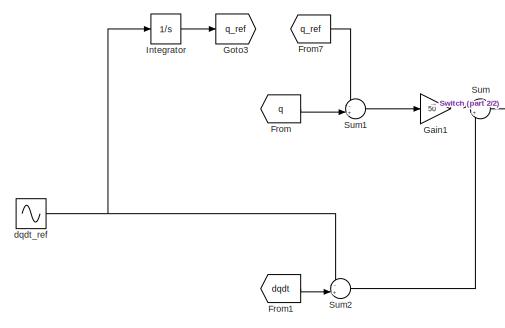
[diagram: root canvas - part 1/2, top left region]
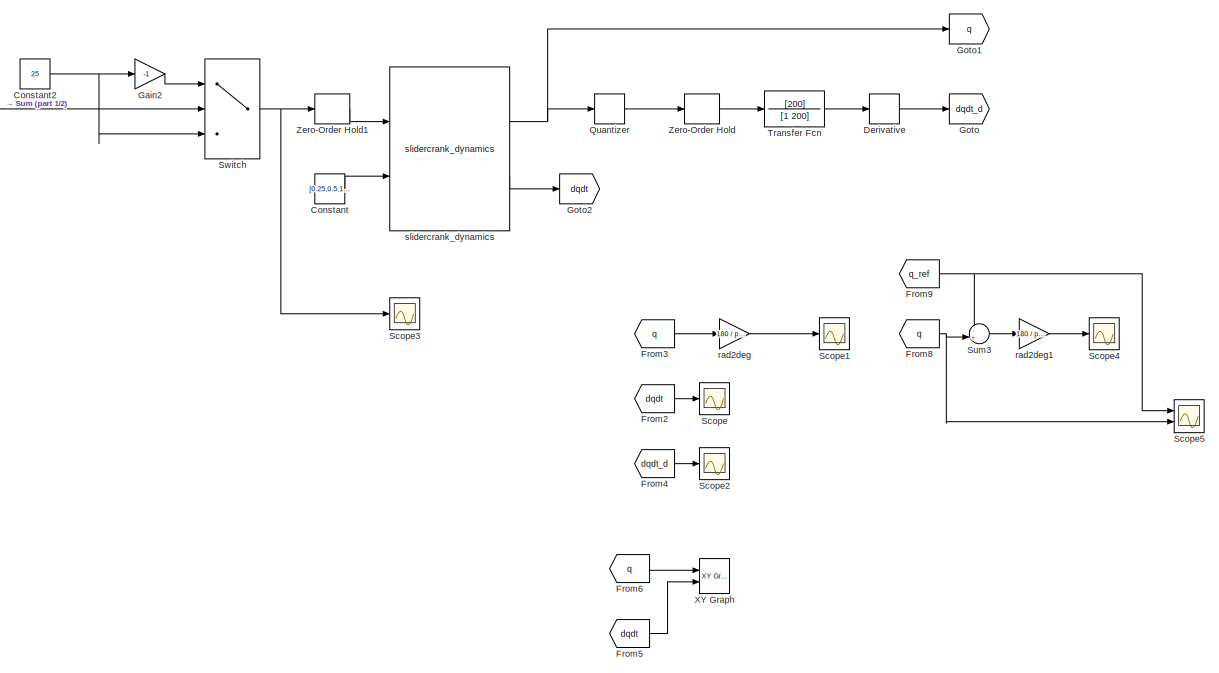
[diagram: root canvas - part 2/2, center side, full height]
MODEL slx_597946331d45
KIND model
CONFIG AbsTol = auto
CONFIG EnableMultiTasking = off
CONFIG FixedStep = auto
CONFIG MaxStep = 1e-5
CONFIG MinStep = auto
CONFIG RelTol = 1e-3
CONFIG SampleTimeConstraint = Unconstrained
CONFIG Solver = VariableStepAuto
CONFIG SolverName = VariableStepAuto
CONFIG StartTime = 0.0
CONFIG StopTime = 1
BLOCK [Constant] Constant
  Value = [0.25,0.5,1,2,0.5]
BLOCK [Constant] Constant2
  Value = 25
BLOCK [Derivative] Derivative
  CoefficientInTFapproximation = 1000
BLOCK [From] From
  GotoTag = q
BLOCK [From] From1
  GotoTag = dqdt
BLOCK [From] From2
  GotoTag = dqdt
BLOCK [From] From3
  GotoTag = q
BLOCK [From] From4
  GotoTag = dqdt_d
BLOCK [From] From5
  Commented = on
  GotoTag = dqdt
BLOCK [From] From6
  Commented = on
  GotoTag = q
BLOCK [From] From7
  GotoTag = q_ref
BLOCK [From] From8
  GotoTag = q
BLOCK [From] From9
  GotoTag = q_ref
BLOCK [Gain] Gain1
  Gain = 50
  OutDataTypeStr = Inherit: Inherit via internal rule
  ParamDataTypeStr = Inherit: Inherit via internal rule
  SaturateOnIntegerOverflow = off
BLOCK [Gain] Gain2
  Gain = -1
  OutDataTypeStr = Inherit: Inherit via internal rule
  ParamDataTypeStr = Inherit: Inherit via internal rule
  SaturateOnIntegerOverflow = off
BLOCK [Goto] Goto
  GotoTag = dqdt_d
BLOCK [Goto] Goto1
  GotoTag = q
BLOCK [Goto] Goto2
  GotoTag = dqdt
BLOCK [Goto] Goto3
  GotoTag = q_ref
BLOCK [Integrator] Integrator
  Ports = [1, 1]
BLOCK [Quantizer] Quantizer
  Commented = through
  QuantizationInterval = 2*pi()/4096
BLOCK [Scope] Scope
  NumInputPorts = 1
  Ports = [1]
  ScopeSpecificationString = Simulink.scopes.TimeScopeBlockCfg('CurrentConfiguration', extmgr.ConfigurationSet(extmgr.Configuration('Core','General UI',true),extmgr.Configuration('Core','Source UI',true),extmgr.Configuration('Sources','WiredSimulink',true),extmgr.Configuration('Visuals','Time Domain',true,'SerializedDisplays',{struct('MinYLimReal','-2.39519','MaxYLimReal','2.24479','YLabelReal','','MinYLimMag','0.00000','MaxY...<+1390ch>
BLOCK [Scope] Scope1
  NumInputPorts = 1
  Ports = [1]
  ScopeSpecificationString = Simulink.scopes.TimeScopeBlockCfg('CurrentConfiguration', extmgr.ConfigurationSet(extmgr.Configuration('Core','General UI',true),extmgr.Configuration('Core','Source UI',true),extmgr.Configuration('Sources','WiredSimulink',true,'DataLoggingVariableName','ScopeData1'),extmgr.Configuration('Visuals','Time Domain',true,'SerializedDisplays',{struct('MinYLimReal','-79.62817','MaxYLimReal','60.81192','YL...<+1420ch>
BLOCK [Scope] Scope2
  NumInputPorts = 1
  Ports = [1]
  ScopeSpecificationString = Simulink.scopes.TimeScopeBlockCfg('CurrentConfiguration', extmgr.ConfigurationSet(extmgr.Configuration('Core','General UI',true),extmgr.Configuration('Core','Source UI',true),extmgr.Configuration('Sources','WiredSimulink',true,'DataLoggingVariableName','ScopeData2'),extmgr.Configuration('Visuals','Time Domain',true,'SerializedDisplays',{struct('MinYLimReal','-238.14198','MaxYLimReal','49.23097','Y...<+1410ch>
BLOCK [Scope] Scope3
  NumInputPorts = 1
  Ports = [1]
  ScopeSpecificationString = Simulink.scopes.TimeScopeBlockCfg('CurrentConfiguration', extmgr.ConfigurationSet(extmgr.Configuration('Core','General UI',true),extmgr.Configuration('Core','Source UI',true),extmgr.Configuration('Sources','WiredSimulink',true,'DataLoggingVariableName','ScopeData3'),extmgr.Configuration('Visuals','Time Domain',true,'SerializedDisplays',{struct('MinYLimReal','-30.16618','MaxYLimReal','32.33382','YL...<+1470ch>
BLOCK [Scope] Scope4
  NumInputPorts = 1
  Ports = [1]
  ScopeSpecificationString = Simulink.scopes.TimeScopeBlockCfg('CurrentConfiguration', extmgr.ConfigurationSet(extmgr.Configuration('Core','General UI',true),extmgr.Configuration('Core','Source UI',true),extmgr.Configuration('Sources','WiredSimulink',true,'DataLoggingVariableName','ScopeData1'),extmgr.Configuration('Visuals','Time Domain',true,'SerializedDisplays',{struct('MinYLimReal','-0.24672','MaxYLimReal','0.27151','YLab...<+1714ch>
BLOCK [Scope] Scope5
  NumInputPorts = 2
  Ports = [2]
  ScopeSpecificationString = Simulink.scopes.TimeScopeBlockCfg('CurrentConfiguration', extmgr.ConfigurationSet(extmgr.Configuration('Core','General UI',true),extmgr.Configuration('Core','Source UI',true),extmgr.Configuration('Sources','WiredSimulink',true,'DataLoggingVariableName','ScopeData2'),extmgr.Configuration('Visuals','Time Domain',true,'SerializedDisplays',{struct('MinYLimReal','-1.78482','MaxYLimReal','1.57217','YLab...<+1774ch>
BLOCK [Sum] Sum
  IconShape = round
  InputSameDT = off
  Inputs = |++
  OutDataTypeStr = Inherit: Inherit via internal rule
  Ports = [2, 1]
  SaturateOnIntegerOverflow = off
BLOCK [Sum] Sum1
  IconShape = round
  InputSameDT = off
  Inputs = -+|
  OutDataTypeStr = Inherit: Inherit via internal rule
  Ports = [2, 1]
  SaturateOnIntegerOverflow = off
BLOCK [Sum] Sum2
  IconShape = round
  InputSameDT = off
  Inputs = -+|
  OutDataTypeStr = Inherit: Inherit via internal rule
  Ports = [2, 1]
  SaturateOnIntegerOverflow = off
BLOCK [Sum] Sum3
  IconShape = round
  InputSameDT = off
  Inputs = -+|
  OutDataTypeStr = Inherit: Inherit via internal rule
  Ports = [2, 1]
  SaturateOnIntegerOverflow = off
BLOCK [Switch] Switch
  Criteria = u2 > Threshold
  InputSameDT = off
  SaturateOnIntegerOverflow = off
BLOCK [TransferFcn] Transfer Fcn
  Denominator = [1 200]
  Numerator = [200]
BLOCK [Reference] XY Graph  REF=simulink/Sinks/XY Graph
  Commented = on
  Ports = [2]
  SourceBlock = simulink/Sinks/XY Graph
  SourceProductBaseCode = SL
  SourceProductName = Simulink
  SourceType = XY scope.
BLOCK [ZeroOrderHold] Zero-Order Hold
  SampleTime = 1e-3
BLOCK [ZeroOrderHold] Zero-Order Hold1
  SampleTime = 1e-3
BLOCK [Sin] dqdt_ref
  Frequency = 10
  Ports = [0, 1]
  SampleTime = 0
BLOCK [Gain] rad2deg
  Gain = 180 / pi()
  OutDataTypeStr = Inherit: Inherit via internal rule
  ParamDataTypeStr = Inherit: Inherit via internal rule
  SaturateOnIntegerOverflow = off
BLOCK [Gain] rad2deg1
  Gain = 180 / pi()
  OutDataTypeStr = Inherit: Inherit via internal rule
  ParamDataTypeStr = Inherit: Inherit via internal rule
  SaturateOnIntegerOverflow = off
BLOCK [Reference] slidercrank_dynamics  REF=slidercrank_basic_library_v1/slidercrank_dynamics  (lib defined in slx_64627835eefe)
  Ports = [2, 2]
  SourceBlock = slidercrank_basic_library_v1/slidercrank_dynamics
  SourceType = SubSystem
NET Constant2:1 -> Gain2:1, Switch:3
LINE Constant:1 -> slidercrank_dynamics:2
LINE Derivative:1 -> Goto:1
LINE From1:1 -> Sum2:2
LINE From2:1 -> Scope:1
LINE From3:1 -> rad2deg:1
LINE From4:1 -> Scope2:1
LINE From5:1 -> XY Graph:2
LINE From6:1 -> XY Graph:1
LINE From7:1 -> Sum1:1
NET From8:1 -> Scope5:2, Sum3:2
NET From9:1 -> Scope5:1, Sum3:1
LINE From:1 -> Sum1:2
LINE Gain1:1 -> Sum:1
LINE Gain2:1 -> Switch:1
LINE Integrator:1 -> Goto3:1
LINE Quantizer:1 -> Zero-Order Hold:1
LINE Sum1:1 -> Gain1:1
LINE Sum2:1 -> Sum:2
LINE Sum3:1 -> rad2deg1:1
LINE Sum:1 -> Switch:2
NET Switch:1 -> Scope3:1, Zero-Order Hold1:1
LINE Transfer Fcn:1 -> Derivative:1
LINE Zero-Order Hold1:1 -> slidercrank_dynamics:1
LINE Zero-Order Hold:1 -> Transfer Fcn:1
NET dqdt_ref:1 -> Integrator:1, Sum2:1
LINE rad2deg1:1 -> Scope4:1
LINE rad2deg:1 -> Scope1:1
NET slidercrank_dynamics:1 -> Goto1:1, Quantizer:1
LINE slidercrank_dynamics:2 -> Goto2:1
note: NET lines group one-source signal fan-out (src -> all destinations, sorted); 1:1 wires keep LINE
